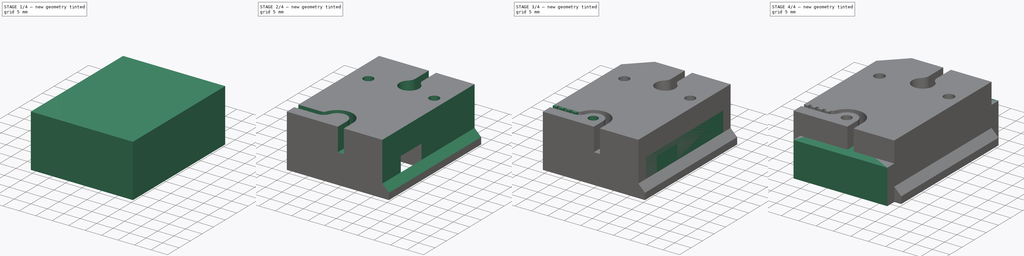
[diagram: build sequence overview — one tinted view per stage of 4, left to right]
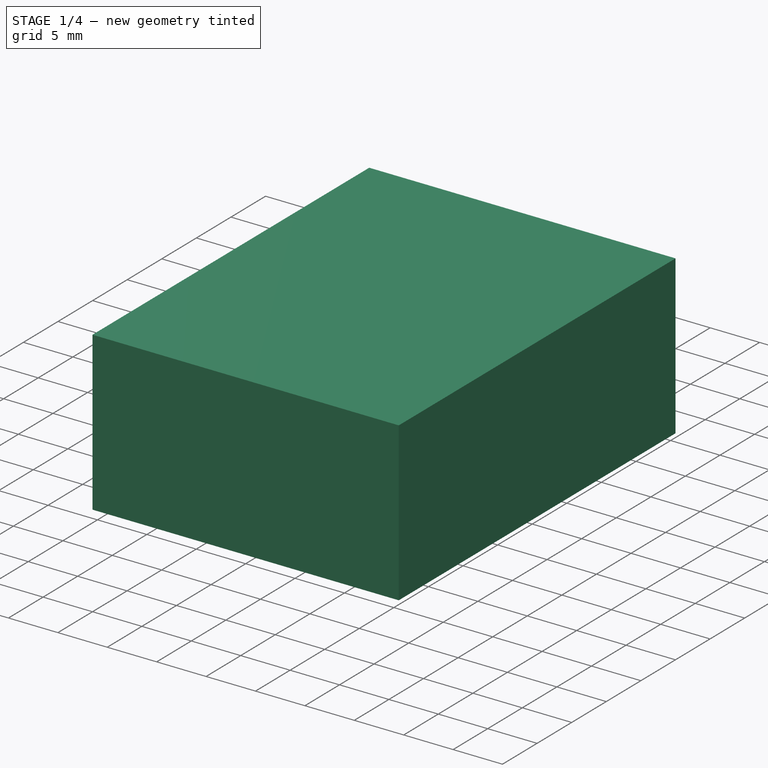
[diagram: stage 1 of 4 — iso view after this stage's code; geometry added in this stage tinted green]
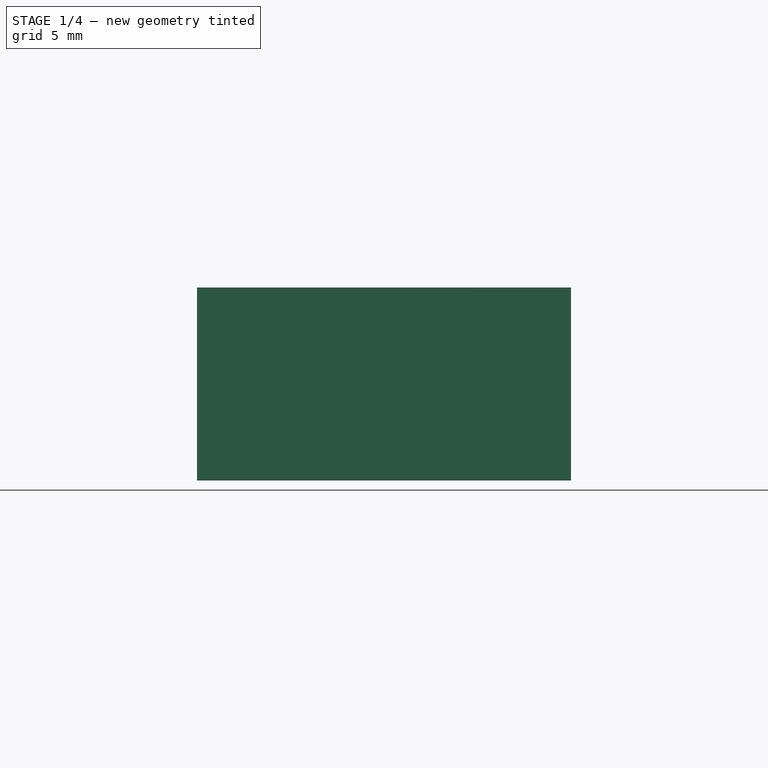
[diagram: stage 1 of 4 — front view after this stage's code; geometry added in this stage tinted green]
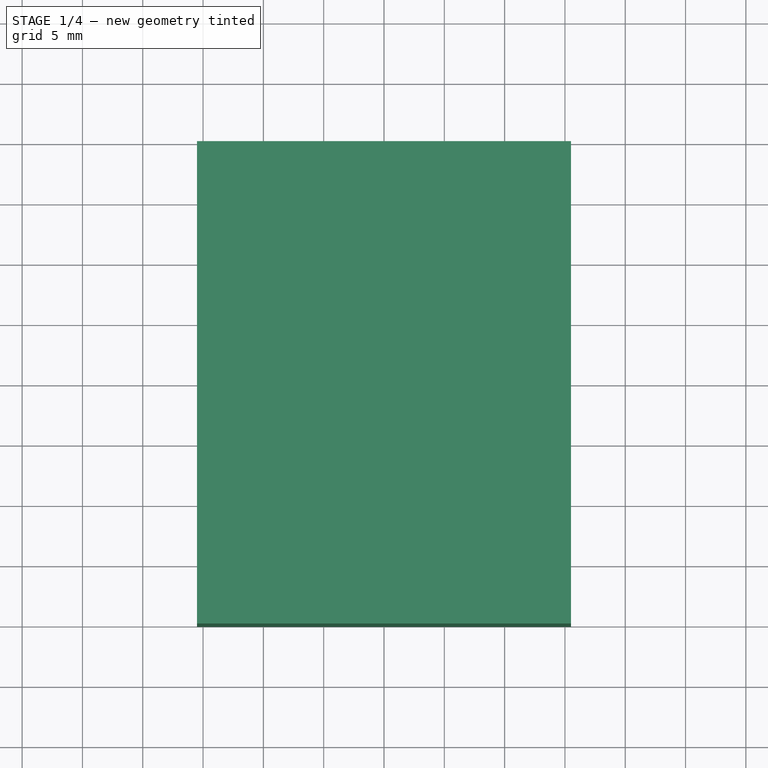
[diagram: stage 1 of 4 — top view after this stage's code; geometry added in this stage tinted green]
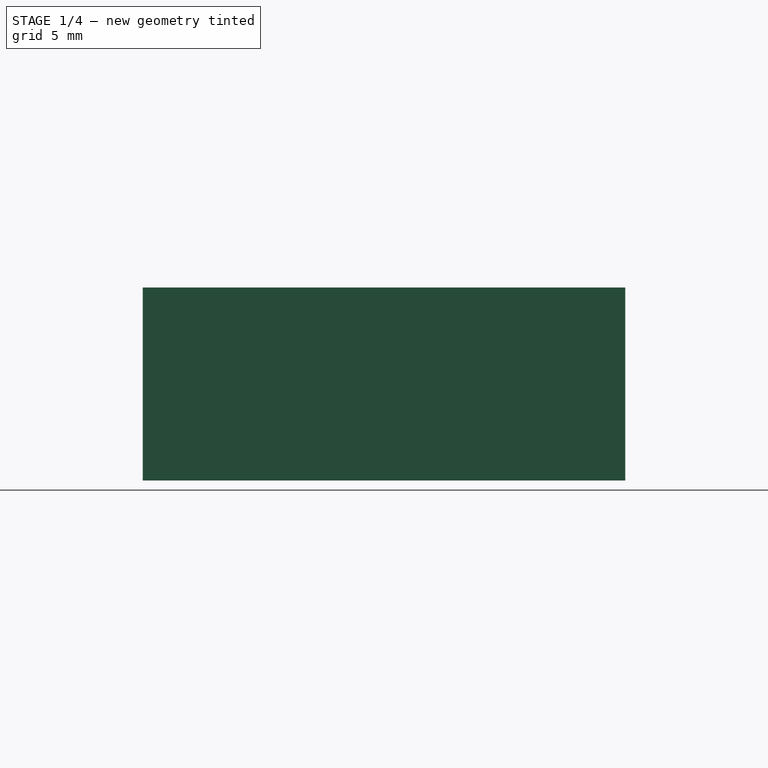
[diagram: stage 1 of 4 — right view after this stage's code; geometry added in this stage tinted green]
FCSTD DOCUMENT  (FreeCAD 0.19R)
Label: XjointBolted
License: All rights reserved
LicenseURL: http://en.wikipedia.org/wiki/All_rights_reserved
objects: Sketcher::SketchObject×14, PartDesign::Pocket×9, PartDesign::Pad×4, PartDesign::Body×4
note: 44 computed .brp shape members not serialized (recipe doc carries the construction recipe); baked Part::Feature solids carry a one-line shape summary decoded from their .brp

FEATURE [PartDesign::Body] Body002  label="CarriageC"
  Group = -> [Sketch004,Pad001,Sketch003,Pocket001]
  Origin = -> Origin002
  Tip = -> Pocket001
FEATURE [Sketcher::SketchObject] Sketch005
  FullyConstrained = false
  MapMode = 5
  Support = -> [XY_Plane003]
  sketch-geometry (11):
    g0: LineSegment StartX=-37.8782 StartY=-3 StartZ=0 EndX=35.272 EndY=-3 EndZ=0
    g1: LineSegment StartX=35.272 StartY=-3 StartZ=0 EndX=35.272 EndY=-12 EndZ=0
    g2: LineSegment StartX=35.272 StartY=-12 StartZ=0 EndX=-37.8782 EndY=-12 EndZ=0
    g3: LineSegment StartX=-37.8782 StartY=-12 StartZ=0 EndX=-37.8782 EndY=-3 EndZ=0
    g4: LineSegment StartX=-44.3491 StartY=-7.5 StartZ=0 EndX=45.9652 EndY=-7.5 EndZ=0
    g5: Circle CenterX=-11.1499 CenterY=11.8637 CenterZ=0 NormalX=0 NormalY=0 NormalZ=1 AngleXU=0 Radius=1.40675
    g6: Circle CenterX=9.8811 CenterY=13.2001 CenterZ=0 NormalX=0 NormalY=0 NormalZ=1 AngleXU=0 Radius=2.36339
    g7: LineSegment StartX=-15.5 StartY=20 StartZ=0 EndX=15.5 EndY=20 EndZ=0
    g8: LineSegment StartX=15.5 StartY=20 StartZ=0 EndX=15.5 EndY=-20 EndZ=0
    g9: LineSegment StartX=15.5 StartY=-20 StartZ=0 EndX=-15.5 EndY=-20 EndZ=0
    g10: LineSegment StartX=-15.5 StartY=-20 StartZ=0 EndX=-15.5 EndY=20 EndZ=0
  constraints (22):
    c: Coincident(g0,g1)
    c: Coincident(g1,g2)
    c: Coincident(g2,g3)
    c: Coincident(g3,g0)
    c: Horizontal(g0)
    c: Horizontal(g2)
    c: Vertical(g1)
    c: Vertical(g3)
    c: Symmetric(g1,g0,g4)
    c: Distance(g1) = 9
    c: DistanceY(g4) = -7.5
    c: Coincident(g7,g8)
    c: Coincident(g8,g9)
    c: Coincident(g9,g10)
    c: Coincident(g10,g7)
    c: Horizontal(g7)
    c: Horizontal(g9)
    c: Vertical(g8)
    c: Vertical(g10)
    c: Distance(g7,g0) = 23
    c: Distance(g7) = 31
    c: Symmetric(g8,g7,g-1)
FEATURE [PartDesign::Pad] Pad002
  Direction = (1,1,1)
  Length = 16
  Length2 = 100
  Profile = -> Sketch005
  Type = 0
FEATURE [Sketcher::SketchObject] Sketch006  label="BottomPocket"
  FullyConstrained = true
  MapMode = 5
  Placement = pos=(0,0,0) rot=(1,0,0;3.14159rad)
  Support = -> [Pad002]
  sketch-geometry (4):
    g0: LineSegment StartX=-13.5 StartY=18 StartZ=0 EndX=13.5 EndY=18 EndZ=0
    g1: LineSegment StartX=13.5 StartY=18 StartZ=0 EndX=13.5 EndY=-18 EndZ=0
    g2: LineSegment StartX=13.5 StartY=-18 StartZ=0 EndX=-13.5 EndY=-18 EndZ=0
    g3: LineSegment StartX=-13.5 StartY=-18 StartZ=0 EndX=-13.5 EndY=18 EndZ=0
  constraints (11):
    c: Coincident(g0,g1)
    c: Coincident(g1,g2)
    c: Coincident(g2,g3)
    c: Coincident(g3,g0)
    c: Horizontal(g0)
    c: Horizontal(g2)
    c: Vertical(g1)
    c: Vertical(g3)
    c: Distance(g0) = 27
    c: Distance(g1) = 36
    c: Symmetric(g0,g2,g-1)
FEATURE [PartDesign::Pocket] Pocket002
  BaseFeature = -> Pad002
  Length = 1.8
  Length2 = 100
  Profile = -> Sketch006
  Type = 0
FEATURE [Sketcher::SketchObject] Sketch007  label="RailHole"
  FullyConstrained = false
  MapMode = 5
  Placement = pos=(-15.5,0,0) rot=(0.57735,-0.57735,-0.57735;2.0944rad)
  Support = -> [Pocket002]
  sketch-geometry (5):
    g0: LineSegment StartX=3 StartY=8.5 StartZ=0 EndX=12 EndY=8.5 EndZ=0
    g1: LineSegment StartX=12 StartY=8.5 StartZ=0 EndX=12 EndY=-2.55241 EndZ=0
    g2: LineSegment StartX=12 StartY=-2.55241 StartZ=0 EndX=3 EndY=-2.55241 EndZ=0
    g3: LineSegment StartX=3 StartY=-2.55241 StartZ=0 EndX=3 EndY=8.5 EndZ=0
    g4: LineSegment StartX=7.5 StartY=10.9531 StartZ=0 EndX=7.5 EndY=-7.76606 EndZ=0
  constraints (12):
    c: Coincident(g0,g1)
    c: Coincident(g1,g2)
    c: Coincident(g2,g3)
    c: Coincident(g3,g0)
    c: Horizontal(g0)
    c: Horizontal(g2)
    c: Vertical(g1)
    c: Vertical(g3)
    c: Distance(g0) = 9
    c: Symmetric(g0,g0,g4)
    c: DistanceX(g4) = 7.5
    c: DistanceY(g0) = 8.5
FEATURE [PartDesign::Pocket] Pocket003
  BaseFeature = -> Pocket002
  Length = 29
  Length2 = 100
  Profile = -> Sketch007
  Type = 0
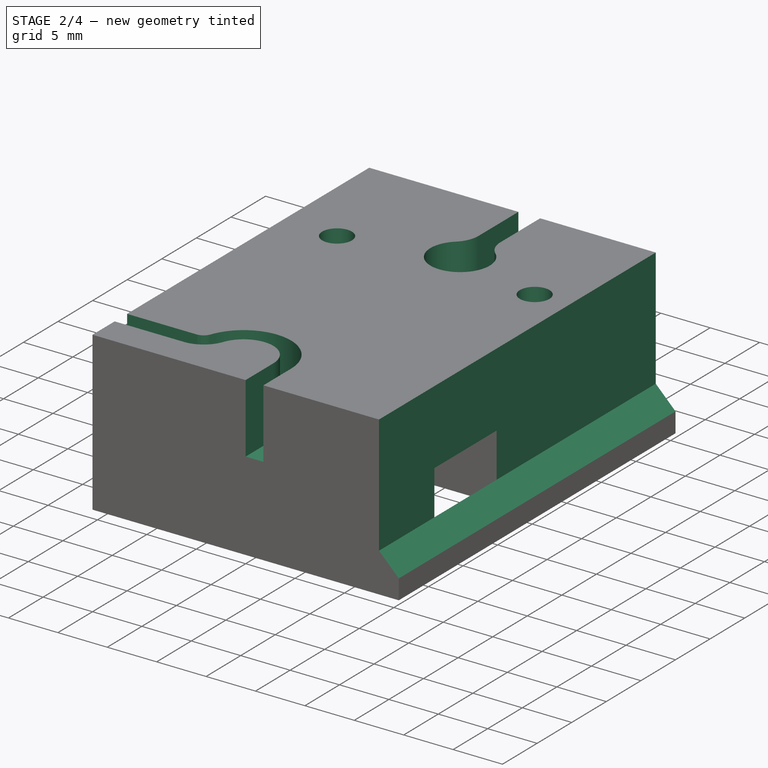
[diagram: stage 2 of 4 — iso view after this stage's code; geometry added in this stage tinted green]
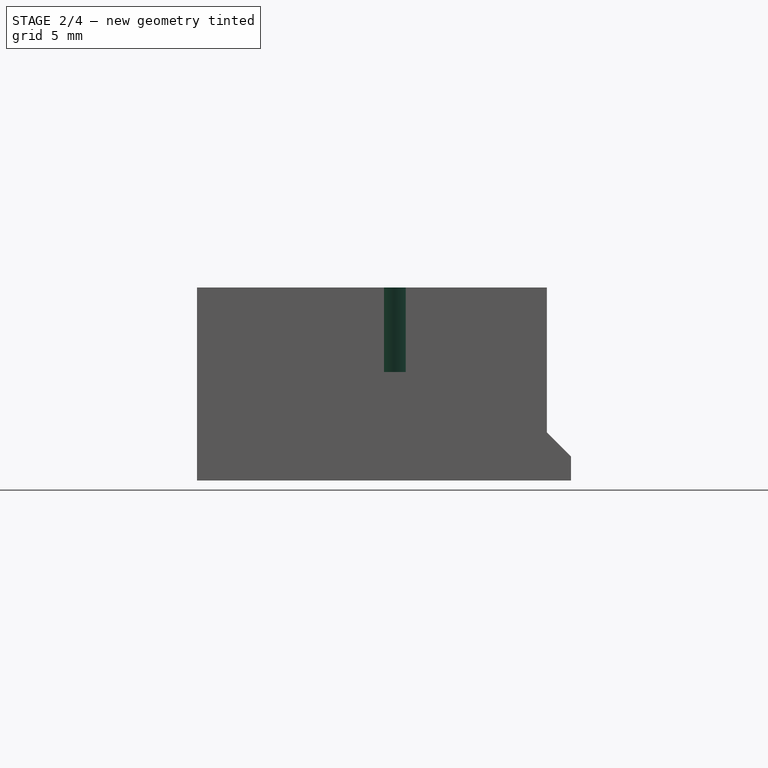
[diagram: stage 2 of 4 — front view after this stage's code; geometry added in this stage tinted green]
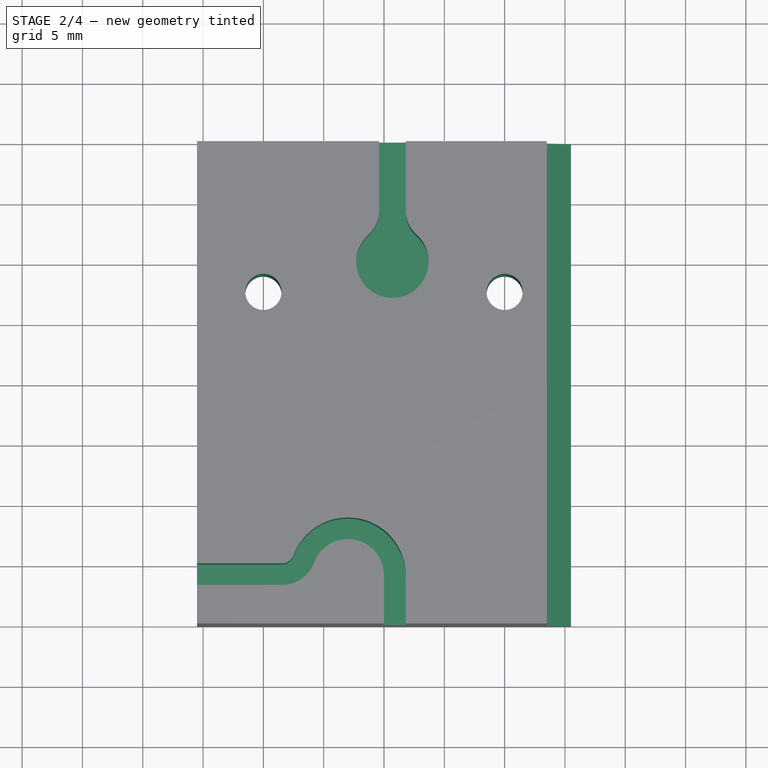
[diagram: stage 2 of 4 — top view after this stage's code; geometry added in this stage tinted green]
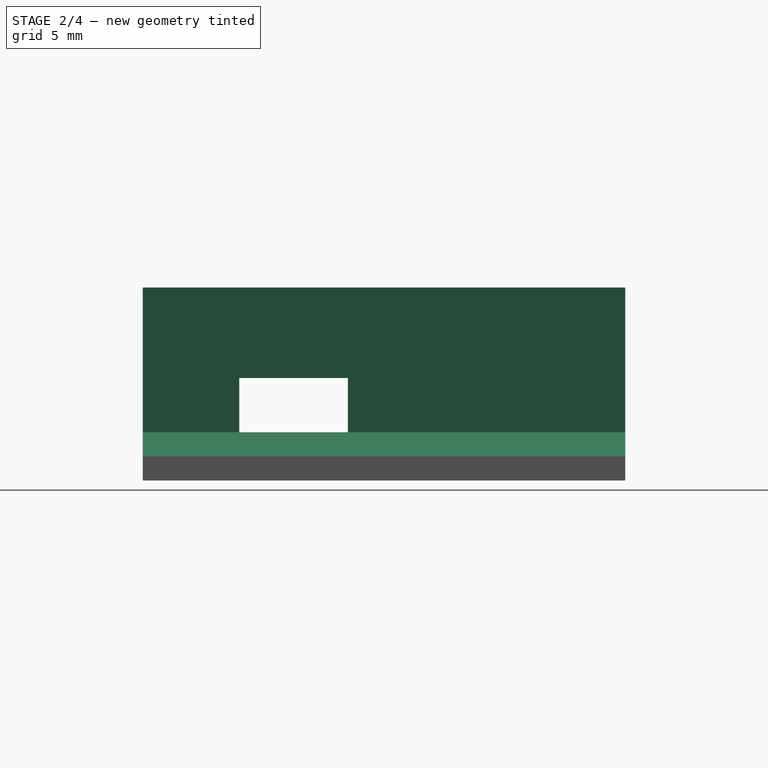
[diagram: stage 2 of 4 — right view after this stage's code; geometry added in this stage tinted green]
FEATURE [Sketcher::SketchObject] Sketch009  label="BeltNotch"
  FullyConstrained = true
  MapMode = 5
  Placement = pos=(0,-20,0) rot=(1,0,0;1.5708rad)
  Support = -> [Pocket003]
  sketch-geometry (4):
    g0: LineSegment StartX=13.5 StartY=18.73 StartZ=0 EndX=13.5 EndY=4 EndZ=0
    g1: LineSegment StartX=13.5 StartY=4 StartZ=0 EndX=19.97 EndY=-2.47 EndZ=0
    g2: LineSegment StartX=19.97 StartY=-2.47 StartZ=0 EndX=19.97 EndY=18.73 EndZ=0
    g3: LineSegment StartX=19.97 StartY=18.73 StartZ=0 EndX=13.5 EndY=18.73 EndZ=0
  constraints (12):
    c: Vertical(g0)
    c: Coincident(g0,g1)
    c: Coincident(g1,g2)
    c: Vertical(g2)
    c: Coincident(g2,g3)
    c: Coincident(g3,g0)
    c: Horizontal(g3)
    c: DistanceX(g0) = 13.5
    c: DistanceY(g0) = 4
    c: Angle(g1) = -0.785398
    c: Distance(g3) = 6.47
    c: DistanceY(g2) = 18.73
FEATURE [Sketcher::SketchObject] Sketch012  label="BeltClamp"
  FullyConstrained = false
  MapMode = 5
  Placement = pos=(0,0,16) rot=(0,0,1;0rad)
  sketch-geometry (17):
    g0: LineSegment StartX=1.8 StartY=29.2485 StartZ=0 EndX=-0.4 EndY=29.2485 EndZ=0
    g1: LineSegment StartX=-0.4 StartY=29.2485 StartZ=0 EndX=-0.4 EndY=14.2485 EndZ=0
    g2: LineSegment StartX=1.8 StartY=29.2485 StartZ=0 EndX=1.8 EndY=14.2485 EndZ=0
    g3: ArcOfCircle CenterX=0.7 CenterY=10 CenterZ=0 NormalX=0 NormalY=0 NormalZ=1 AngleXU=0 Radius=3 StartAngle=2.30052 EndAngle=7.12425
    g4: ArcOfCircle CenterX=-3.1 CenterY=14.2485 CenterZ=0 NormalX=0 NormalY=0 NormalZ=1 AngleXU=0 Radius=2.7 StartAngle=5.44212 EndAngle=6.28319
    g5: ArcOfCircle CenterX=4.5 CenterY=14.2485 CenterZ=0 NormalX=0 NormalY=0 NormalZ=1 AngleXU=0 Radius=2.7 StartAngle=3.14159 EndAngle=3.98266
    g6: LineSegment StartX=0.7 StartY=39.9499 StartZ=0 EndX=0.7 EndY=-32.17 EndZ=0
    g7: LineSegment StartX=0 StartY=-22.14 StartZ=0 EndX=0 EndY=-16 EndZ=0
    g8: LineSegment StartX=1.8 StartY=-22.14 StartZ=0 EndX=1.8 EndY=-16 EndZ=0
    g9: LineSegment StartX=0 StartY=-22.14 StartZ=0 EndX=1.8 EndY=-22.14 EndZ=0
    g10: ArcOfCircle CenterX=-3 CenterY=-16 CenterZ=0 NormalX=0 NormalY=0 NormalZ=1 AngleXU=0 Radius=3 StartAngle=0 EndAngle=2.78378
    g11: ArcOfCircle CenterX=-3 CenterY=-16 CenterZ=0 NormalX=0 NormalY=0 NormalZ=1 AngleXU=0 Radius=4.8 StartAngle=0 EndAngle=2.78378
    g12: ArcOfCircle CenterX=-8.47782 CenterY=-13.9518 CenterZ=0 NormalX=0 NormalY=0 NormalZ=1 AngleXU=0 Radius=1.04822 StartAngle=4.71239 EndAngle=5.92537
    g13: ArcOfCircle CenterX=-8.47782 CenterY=-13.9518 CenterZ=0 NormalX=0 NormalY=0 NormalZ=1 AngleXU=0 Radius=2.84822 StartAngle=4.71239 EndAngle=5.92537
    g14: LineSegment StartX=-17.9078 StartY=-15 StartZ=0 EndX=-8.47782 EndY=-15 EndZ=0
    g15: LineSegment StartX=-17.9078 StartY=-16.8 StartZ=0 EndX=-8.47782 EndY=-16.8 EndZ=0
    g16: LineSegment StartX=-17.9078 StartY=-16.8 StartZ=0 EndX=-17.9078 EndY=-15 EndZ=0
  constraints (45):
    c: Coincident(g0,g1)
    c: Coincident(g0,g2)
    c: Distance(g0) = 2.2
    c: Tangent(g5,g2) = -1.5708
    c: Tangent(g4,g1) = 1.5708
    c: Tangent(g4,g3) = 1.5708
    c: Tangent(g5,g3) = 1.5708
    c: Diameter(g3) = 6
    c: Vertical(g6)
    c: PointOnObject(g3,g6)
    c: DistanceX(g6) = 0.7
    c: DistanceY(g6) = -32.17
    c: Vertical(g1)
    c: Vertical(g2)
    c: Equal(g2,g1)
    c: Symmetric(g0,g0,g6)
    c: DistanceY(g3) = 10
    c: Distance(g2) = 15
    c: Distance(g3,g3) = 4
    c: Vertical(g7)
    c: Vertical(g8)
    c: Coincident(g9,g7)
    c: Coincident(g9,g8)
    c: Horizontal(g9)
    c: Coincident(g11,g10)
    c: Coincident(g13,g12)
    c: Tangent(g12,g11) = 1.5708
    c: Tangent(g13,g10) = 1.5708
    c: Horizontal(g14)
    c: Tangent(g15,g13) = -1.5708
    c: Tangent(g14,g12) = -1.5708
    c: Horizontal(g15)
    c: Distance(g9) = 1.8
    c: Diameter(g10) = 6
    c: Tangent(g11,g8) = -1.5708
    c: Tangent(g10,g7) = -1.5708
    c: DistanceX(g10) = -3
    c: DistanceY(g7) = -16
    c: DistanceX(g12) = -8.47782
    c: DistanceY(g12) = -15
    c: Coincident(g16,g15)
    c: Coincident(g16,g14)
    c: Vertical(g16)
    c: Distance(g15) = 9.43
    c: Distance(g8) = 6.14
FEATURE [PartDesign::Pocket] Pocket004
  BaseFeature = -> Pocket003
  Length = 5
  Length2 = 100
  Profile = -> Sketch009
  Type = 1
FEATURE [Sketcher::SketchObject] Sketch011  label="holesBolts"
  FullyConstrained = true
  MapMode = 5
  Placement = pos=(0,0,16) rot=(0,0,1;0rad)
  Support = -> [Pocket004]
  sketch-geometry (4):
    g0: Circle CenterX=-10 CenterY=-7.5 CenterZ=0 NormalX=0 NormalY=0 NormalZ=1 AngleXU=0 Radius=1.5
    g1: Circle CenterX=10 CenterY=-7.5 CenterZ=0 NormalX=0 NormalY=0 NormalZ=1 AngleXU=0 Radius=1.5
    g2: Circle CenterX=-10 CenterY=7.5 CenterZ=0 NormalX=0 NormalY=0 NormalZ=1 AngleXU=0 Radius=1.5
    g3: Circle CenterX=10 CenterY=7.5 CenterZ=0 NormalX=0 NormalY=0 NormalZ=1 AngleXU=0 Radius=1.5
  constraints (9):
    c: Symmetric(g3,g2,g-2)
    c: Symmetric(g0,g1,g-2)
    c: Distance(g1,g0) = 20
    c: Distance(g3,g1) = 15
    c: Symmetric(g1,g3,g-1)
    c: Diameter(g0) = 3
    c: Equal(g0,g1)
    c: Equal(g0,g2)
    c: Equal(g0,g3)
FEATURE [PartDesign::Pocket] Pocket005
  BaseFeature = -> Pocket004
  Length = 5
  Length2 = 100
  Profile = -> Sketch011
  Type = 1
FEATURE [PartDesign::Pocket] Pocket006
  BaseFeature = -> Pocket005
  Length = 7
  Length2 = 100
  Profile = -> Sketch012
  Type = 0
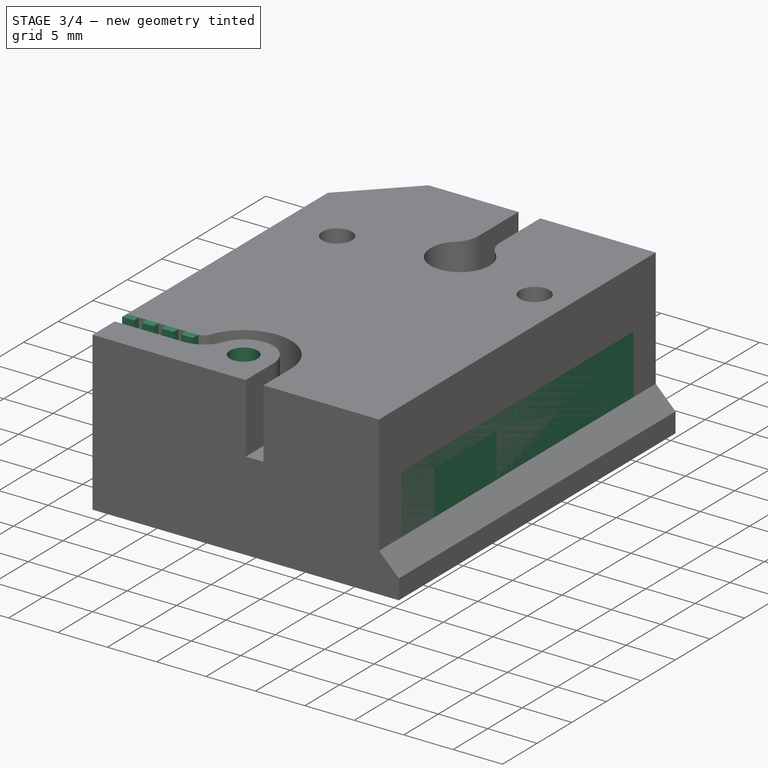
[diagram: stage 3 of 4 — iso view after this stage's code; geometry added in this stage tinted green]
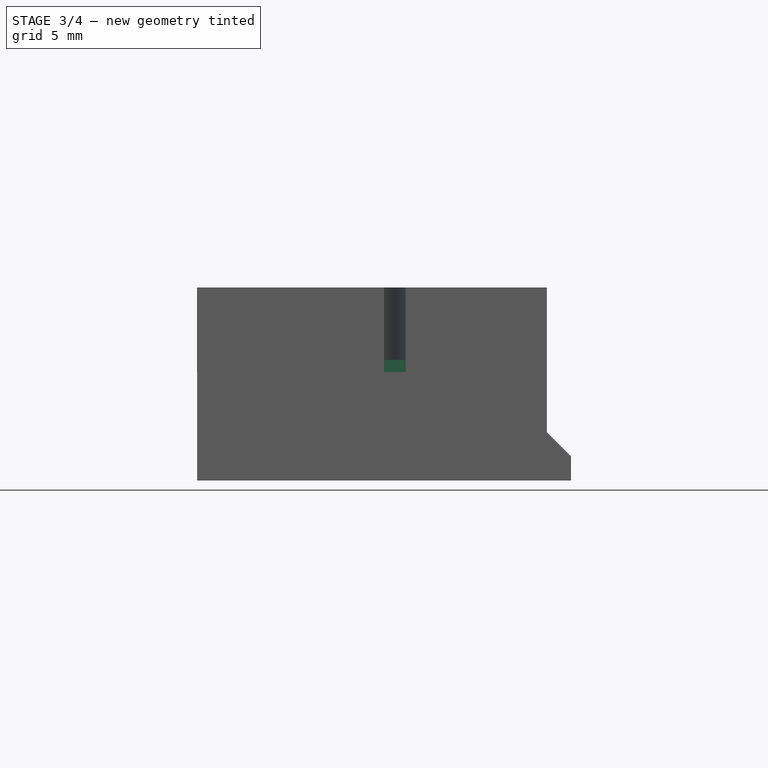
[diagram: stage 3 of 4 — front view after this stage's code; geometry added in this stage tinted green]
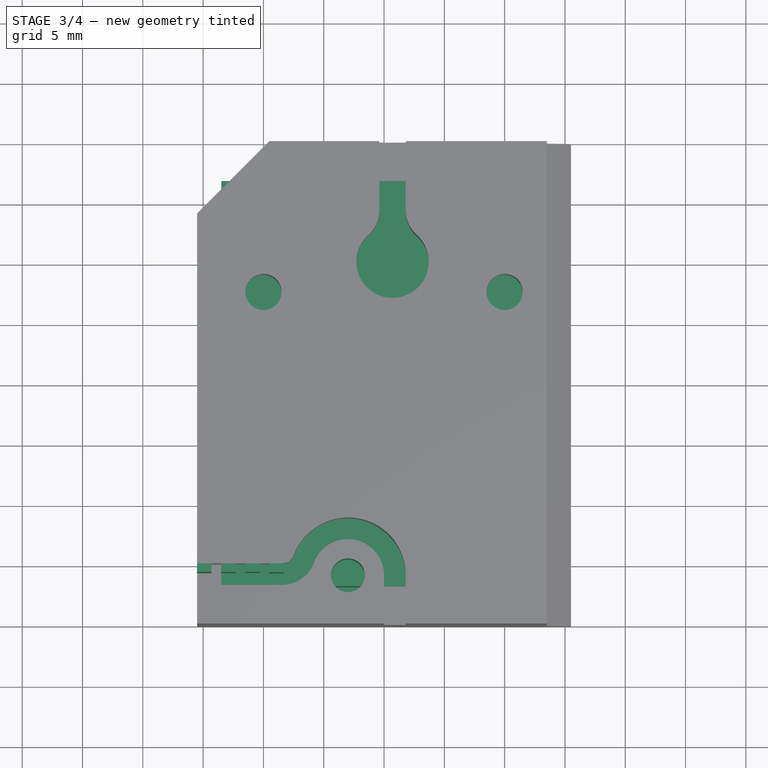
[diagram: stage 3 of 4 — top view after this stage's code; geometry added in this stage tinted green]
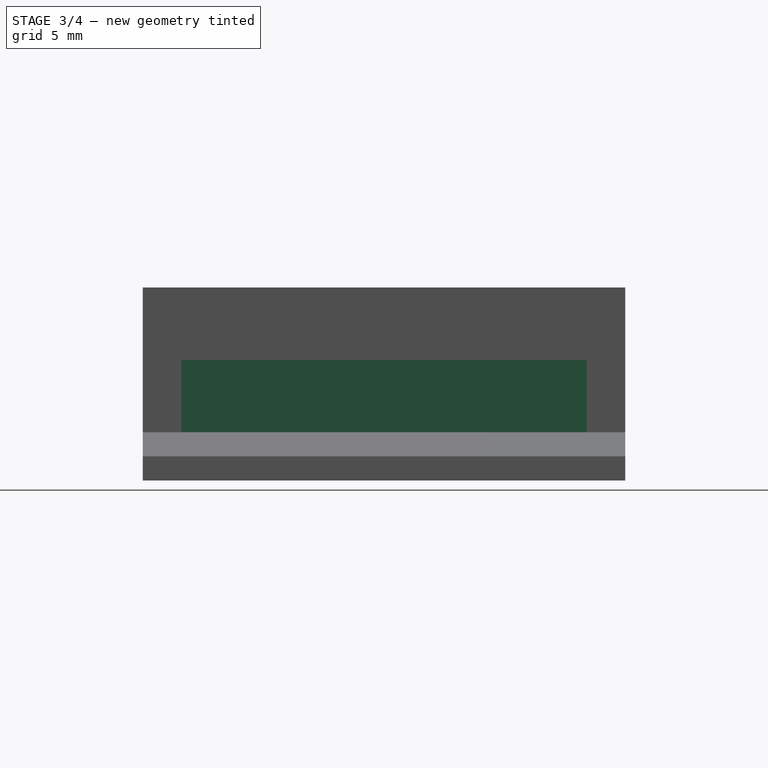
[diagram: stage 3 of 4 — right view after this stage's code; geometry added in this stage tinted green]
FEATURE [PartDesign::Body] Body  label="CarriageH"
  Group = -> [Sketch,Pad,Sketch002,Pocket]
  Origin = -> Origin
  Tip = -> Pocket
FEATURE [Sketcher::SketchObject] Sketch004
  FullyConstrained = true
  MapMode = 5
  Support = -> [XY_Plane002]
  sketch-geometry (4):
    g0: LineSegment StartX=-13.5 StartY=16.8 StartZ=0 EndX=13.5 EndY=16.8 EndZ=0
    g1: LineSegment StartX=13.5 StartY=16.8 StartZ=0 EndX=13.5 EndY=-16.8 EndZ=0
    g2: LineSegment StartX=13.5 StartY=-16.8 StartZ=0 EndX=-13.5 EndY=-16.8 EndZ=0
    g3: LineSegment StartX=-13.5 StartY=-16.8 StartZ=0 EndX=-13.5 EndY=16.8 EndZ=0
  constraints (11):
    c: Coincident(g0,g1)
    c: Coincident(g1,g2)
    c: Coincident(g2,g3)
    c: Coincident(g3,g0)
    c: Horizontal(g0)
    c: Horizontal(g2)
    c: Vertical(g1)
    c: Vertical(g3)
    c: Symmetric(g1,g0,g-1)
    c: Distance(g0) = 27
    c: Distance(g1) = 33.6
FEATURE [PartDesign::Pad] Pad001
  Direction = (1,1,1)
  Length = 10
  Length2 = 100
  Profile = -> Sketch004
  Type = 0
FEATURE [Sketcher::SketchObject] Sketch014  label="corner"
  FullyConstrained = false
  MapMode = 5
  Placement = pos=(0,0,16) rot=(0,0,1;0rad)
  sketch-geometry (3):
    g0: LineSegment StartX=-15.5 StartY=14 StartZ=0 EndX=-7.5016 EndY=21.9984 EndZ=0
    g1: LineSegment StartX=-7.5016 StartY=21.9984 StartZ=0 EndX=-21.3456 EndY=27.3506 EndZ=0
    g2: LineSegment StartX=-21.3456 StartY=27.3506 StartZ=0 EndX=-15.5 EndY=14 EndZ=0
  constraints (6):
    c: Coincident(g0,g1)
    c: Coincident(g1,g2)
    c: Coincident(g2,g0)
    c: Angle(g0) = 0.785398
    c: DistanceY(g0) = 14
    c: DistanceX(g0) = -15.5
FEATURE [Sketcher::SketchObject] Sketch015  label="clamphole1"
  FullyConstrained = false
  MapMode = 5
  Placement = pos=(0,0,9) rot=(0,0,1;0rad)
  sketch-geometry (2):
    g0: Circle CenterX=-3 CenterY=-16 CenterZ=0 NormalX=0 NormalY=0 NormalZ=1 AngleXU=0 Radius=1.4
    g1: Circle CenterX=0.701875 CenterY=10 CenterZ=0 NormalX=0 NormalY=0 NormalZ=1 AngleXU=0 Radius=1.4
  constraints (5):
    c: Diameter(g0) = 2.8
    c: Equal(g0,g1)
    c: DistanceY(g1) = 10
    c: DistanceX(g0) = -3
    c: DistanceY(g0) = -16
FEATURE [PartDesign::Pocket] Pocket007
  BaseFeature = -> Pocket006
  Length = 5
  Length2 = 100
  Profile = -> Sketch015
  Type = 4
FEATURE [Sketcher::SketchObject] Sketch016  label="teeth"
  FullyConstrained = false
  MapMode = 5
  Placement = pos=(0,0,16) rot=(0,0,1;0rad)
  Support = -> [Pocket007]
  sketch-geometry (29):
    g0: Circle CenterX=-20.9082 CenterY=-14.9653 CenterZ=0 NormalX=0 NormalY=0 NormalZ=1 AngleXU=0 Radius=0.5
    g1: Circle CenterX=-18.9082 CenterY=-14.9653 CenterZ=0 NormalX=0 NormalY=0 NormalZ=1 AngleXU=0 Radius=0.5
    g2: Circle CenterX=-16.9082 CenterY=-14.9653 CenterZ=0 NormalX=0 NormalY=0 NormalZ=1 AngleXU=0 Radius=0.5
    g3: Circle CenterX=-14.9082 CenterY=-14.9653 CenterZ=0 NormalX=0 NormalY=0 NormalZ=1 AngleXU=0 Radius=0.5
    g4: Circle CenterX=-12.9082 CenterY=-14.9653 CenterZ=0 NormalX=0 NormalY=0 NormalZ=1 AngleXU=0 Radius=0.5
    g5: Circle CenterX=-10.9082 CenterY=-14.9576 CenterZ=0 NormalX=0 NormalY=0 NormalZ=1 AngleXU=0 Radius=0.5
    g6: Circle CenterX=-8.90867 CenterY=-15.0023 CenterZ=0 NormalX=0 NormalY=0 NormalZ=1 AngleXU=0 Radius=0.5
    g7: LineSegment StartX=-20.9082 StartY=-14.9653 StartZ=0 EndX=-18.9082 EndY=-14.9653 EndZ=0
    g8: LineSegment StartX=-18.9082 StartY=-14.9653 StartZ=0 EndX=-16.9082 EndY=-14.9653 EndZ=0
    g9: LineSegment StartX=-16.9082 StartY=-14.9653 StartZ=0 EndX=-14.9082 EndY=-14.9653 EndZ=0
    g10: LineSegment StartX=-14.9082 StartY=-14.9653 StartZ=0 EndX=-12.9082 EndY=-14.9653 EndZ=0
    g11: LineSegment StartX=-12.9082 StartY=-14.9653 StartZ=0 EndX=-10.9082 EndY=-14.9576 EndZ=0
    g12: LineSegment StartX=-10.9082 StartY=-14.9576 StartZ=0 EndX=-8.90867 EndY=-15.0023 EndZ=0
    g13: LineSegment StartX=-15.5082 StartY=-14.2153 StartZ=0 EndX=-14.3082 EndY=-14.2153 EndZ=0
    g14: LineSegment StartX=-14.3082 StartY=-14.2153 StartZ=0 EndX=-14.3082 EndY=-15.7153 EndZ=0
    g15: LineSegment StartX=-14.3082 StartY=-15.7153 StartZ=0 EndX=-15.5082 EndY=-15.7153 EndZ=0
    g16: LineSegment StartX=-15.5082 StartY=-15.7153 StartZ=0 EndX=-15.5082 EndY=-14.2153 EndZ=0
    g17: LineSegment StartX=-13.5082 StartY=-14.2153 StartZ=0 EndX=-12.3082 EndY=-14.2153 EndZ=0
    g18: LineSegment StartX=-12.3082 StartY=-14.2153 StartZ=0 EndX=-12.3082 EndY=-15.7153 EndZ=0
    g19: LineSegment StartX=-12.3082 StartY=-15.7153 StartZ=0 EndX=-13.5082 EndY=-15.7153 EndZ=0
    g20: LineSegment StartX=-13.5082 StartY=-15.7153 StartZ=0 EndX=-13.5082 EndY=-14.2153 EndZ=0
    g21: LineSegment StartX=-11.5082 StartY=-14.2076 StartZ=0 EndX=-10.3082 EndY=-14.2076 EndZ=0
    g22: LineSegment StartX=-10.3082 StartY=-14.2076 StartZ=0 EndX=-10.3082 EndY=-15.7076 EndZ=0
    g23: LineSegment StartX=-10.3082 StartY=-15.7076 StartZ=0 EndX=-11.5082 EndY=-15.7076 EndZ=0
    g24: LineSegment StartX=-11.5082 StartY=-15.7076 StartZ=0 EndX=-11.5082 EndY=-14.2076 EndZ=0
    g25: LineSegment StartX=-9.50867 StartY=-14.2523 StartZ=0 EndX=-8.30867 EndY=-14.2523 EndZ=0
    g26: LineSegment StartX=-8.30867 StartY=-14.2523 StartZ=0 EndX=-8.30867 EndY=-15.7523 EndZ=0
    g27: LineSegment StartX=-8.30867 StartY=-15.7523 StartZ=0 EndX=-9.50867 EndY=-15.7523 EndZ=0
    g28: LineSegment StartX=-9.50867 StartY=-15.7523 StartZ=0 EndX=-9.50867 EndY=-14.2523 EndZ=0
  constraints (66):
    c: Coincident(g7,g0)
    c: Coincident(g7,g1)
    c: Horizontal(g7)
    c: Coincident(g7,g8)
    c: Coincident(g8,g2)
    c: Horizontal(g8)
    c: Coincident(g8,g9)
    c: Coincident(g9,g3)
    c: Horizontal(g9)
    c: Coincident(g9,g10)
    c: Coincident(g10,g4)
    c: Horizontal(g10)
    c: Coincident(g10,g11)
    c: Coincident(g11,g5)
    c: Coincident(g11,g12)
    c: Coincident(g12,g6)
    c: Equal(g7,g8)
    c: Equal(g8,g9)
    c: Equal(g9,g10)
    c: Equal(g10,g11)
    c: Equal(g11,g12)
    c: Distance(g12) = 2
    c: Coincident(g13,g14)
    c: Coincident(g14,g15)
    c: Coincident(g15,g16)
    c: Coincident(g16,g13)
    c: Horizontal(g13)
    c: Horizontal(g15)
    c: Vertical(g14)
    c: Vertical(g16)
    c: Coincident(g17,g18)
    c: Coincident(g18,g19)
    c: Coincident(g19,g20)
    c: Coincident(g20,g17)
    c: Horizontal(g17)
    c: Horizontal(g19)
    c: Vertical(g18)
    c: Vertical(g20)
    c: Coincident(g21,g22)
    c: Coincident(g22,g23)
    c: Coincident(g23,g24)
    c: Coincident(g24,g21)
    c: Horizontal(g21)
    c: Horizontal(g23)
    c: Vertical(g22)
    c: Vertical(g24)
    c: Coincident(g25,g26)
    c: Coincident(g26,g27)
    c: Coincident(g27,g28)
    c: Coincident(g28,g25)
    c: Horizontal(g25)
    c: Horizontal(g27)
    c: Vertical(g26)
    c: Vertical(g28)
    c: Equal(g13,g17)
    c: Equal(g17,g21)
    c: Equal(g21,g25)
    c: Equal(g28,g24)
    c: Equal(g24,g20)
    c: Equal(g20,g16)
    c: Symmetric(g15,g13,g3)
    c: Symmetric(g19,g17,g4)
    c: Symmetric(g23,g21,g5)
    c: Symmetric(g27,g25,g6)
    c: Distance(g17) = 1.2
    c: Distance(g18) = 1.5
FEATURE [PartDesign::Pocket] Pocket008
  BaseFeature = -> Pocket007
  Length = 5
  Length2 = 100
  Profile = -> Sketch014
  Type = 1
FEATURE [PartDesign::Pad] Pad003
  BaseFeature = -> Pocket008
  Direction = (1,1,1)
  Length = 7
  Length2 = 100
  Profile = -> Sketch016
  Reversed = true
  Type = 0
FEATURE [PartDesign::Body] Body003  label="Crail"
  Group = -> [Sketch005,Pad002,Sketch006,Pocket002,Sketch007,Pocket003,Sketch009,Sketch011,Sketch012,Pocket004,Pocket005,Pocket006,Sketch014,Sketch015,Pocket007,Sketch016,Pocket008,Pad003]
  Origin = -> Origin003
  Tip = -> Pad003
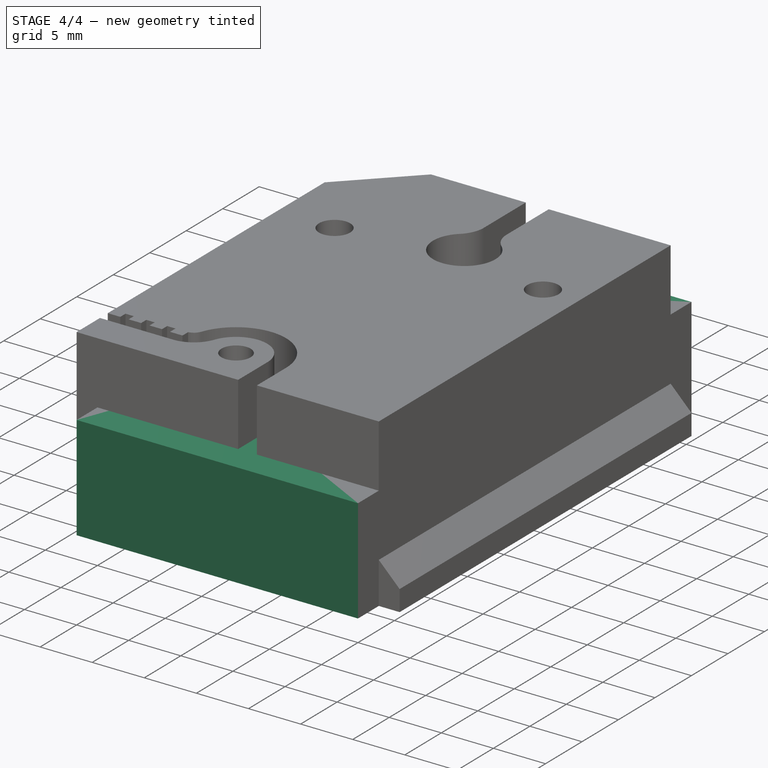
[diagram: stage 4 of 4 — iso view after this stage's code; geometry added in this stage tinted green]
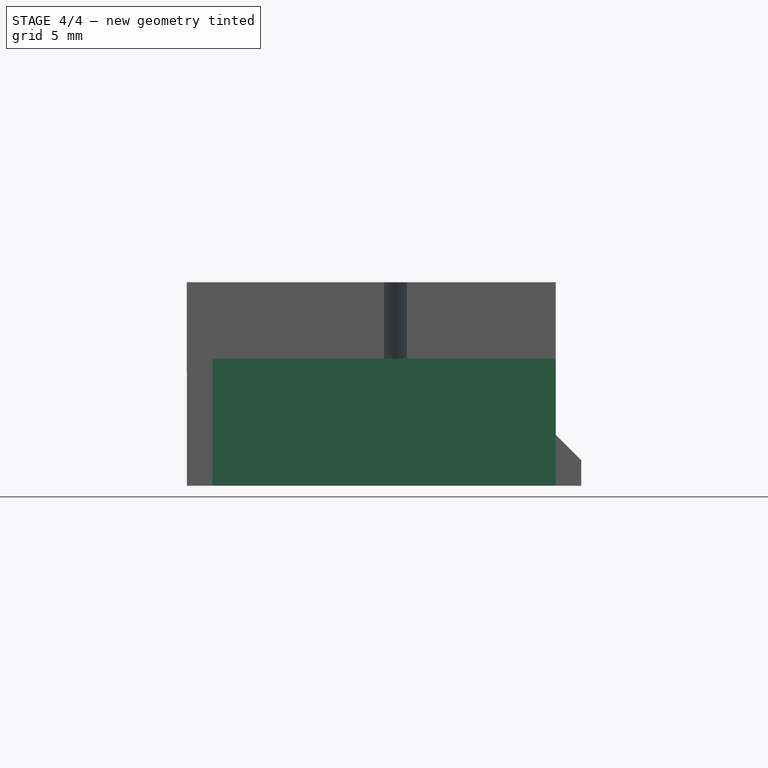
[diagram: stage 4 of 4 — front view after this stage's code; geometry added in this stage tinted green]
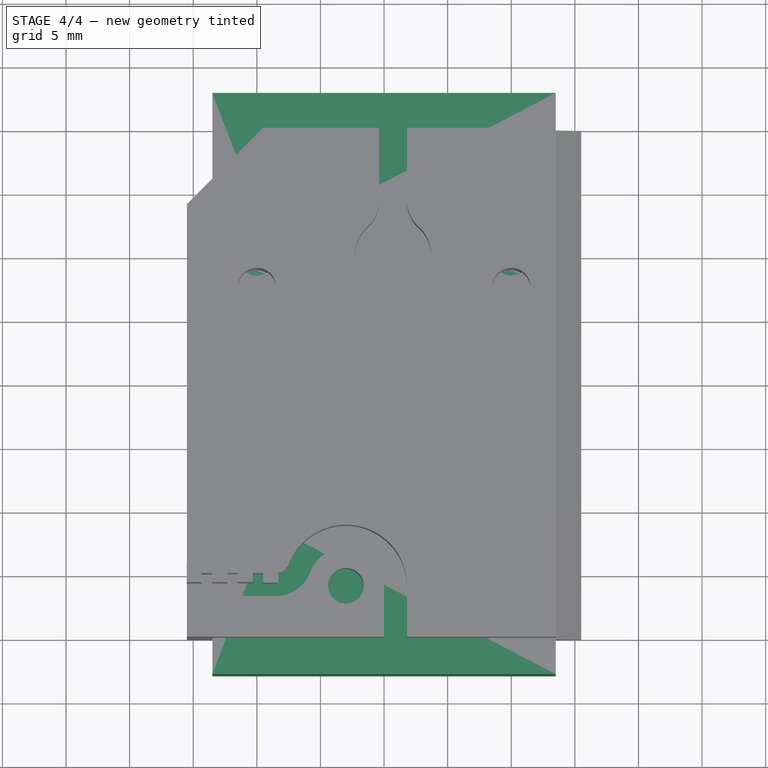
[diagram: stage 4 of 4 — top view after this stage's code; geometry added in this stage tinted green]
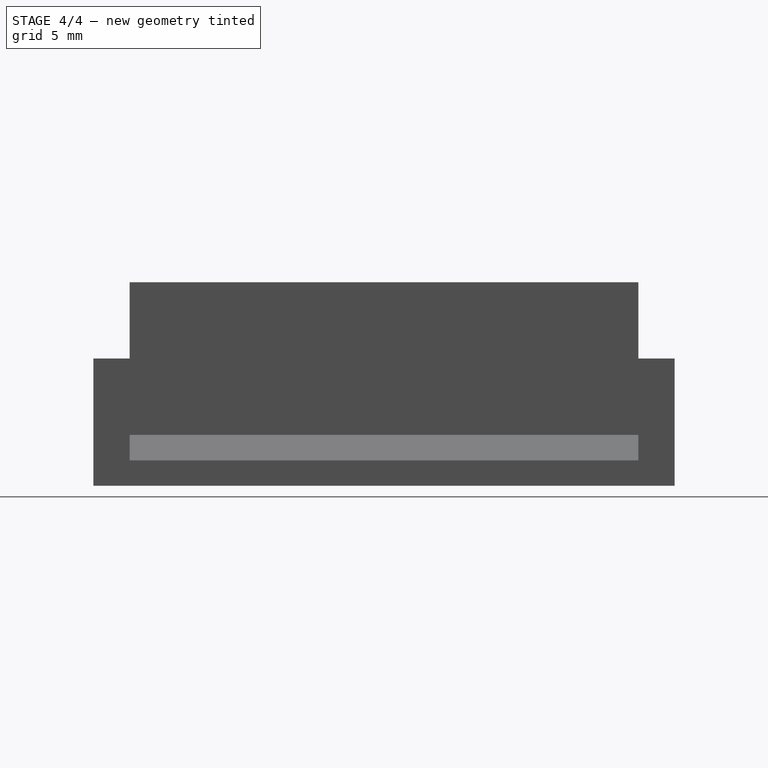
[diagram: stage 4 of 4 — right view after this stage's code; geometry added in this stage tinted green]
FEATURE [Sketcher::SketchObject] Sketch
  FullyConstrained = true
  MapMode = 5
  Support = -> [XY_Plane]
  sketch-geometry (4):
    g0: LineSegment StartX=-13.5 StartY=22.85 StartZ=0 EndX=13.5 EndY=22.85 EndZ=0
    g1: LineSegment StartX=13.5 StartY=22.85 StartZ=0 EndX=13.5 EndY=-22.85 EndZ=0
    g2: LineSegment StartX=13.5 StartY=-22.85 StartZ=0 EndX=-13.5 EndY=-22.85 EndZ=0
    g3: LineSegment StartX=-13.5 StartY=-22.85 StartZ=0 EndX=-13.5 EndY=22.85 EndZ=0
  constraints (11):
    c: Coincident(g0,g1)
    c: Coincident(g1,g2)
    c: Coincident(g2,g3)
    c: Coincident(g3,g0)
    c: Horizontal(g0)
    c: Horizontal(g2)
    c: Vertical(g1)
    c: Vertical(g3)
    c: Symmetric(g1,g0,g-1)
    c: Distance(g0) = 27
    c: Distance(g1) = 45.7
FEATURE [PartDesign::Pad] Pad
  Direction = (1,1,1)
  Length = 10
  Length2 = 100
  Profile = -> Sketch
  Type = 0
FEATURE [Sketcher::SketchObject] Sketch001
  FullyConstrained = false
  MapMode = 5
  Support = -> [XY_Plane001]
  sketch-geometry (13):
    g0: Circle CenterX=-10 CenterY=10 CenterZ=0 NormalX=0 NormalY=0 NormalZ=1 AngleXU=0 Radius=1.5
    g1: Circle CenterX=10 CenterY=10 CenterZ=0 NormalX=0 NormalY=0 NormalZ=1 AngleXU=0 Radius=1.5
    g2: Circle CenterX=-10 CenterY=-10 CenterZ=0 NormalX=0 NormalY=0 NormalZ=1 AngleXU=0 Radius=1.5
    g3: Circle CenterX=10 CenterY=-10 CenterZ=0 NormalX=0 NormalY=0 NormalZ=1 AngleXU=0 Radius=1.5
    g4: LineSegment StartX=-54.9096 StartY=-5.5 StartZ=0 EndX=34.3514 EndY=-5.5 EndZ=0
    g5: LineSegment StartX=34.3514 StartY=-5.5 StartZ=0 EndX=34.3514 EndY=-14.5 EndZ=0
    g6: LineSegment StartX=34.3514 StartY=-14.5 StartZ=0 EndX=-54.9096 EndY=-14.5 EndZ=0
    g7: LineSegment StartX=-54.9096 StartY=-14.5 StartZ=0 EndX=-54.9096 EndY=-5.5 EndZ=0
    g8: LineSegment StartX=-66.6812 StartY=-10 StartZ=0 EndX=73.6884 EndY=-10 EndZ=0
    g9: LineSegment StartX=-15.378 StartY=17.5 StartZ=0 EndX=16.1512 EndY=17.5 EndZ=0
    g10: LineSegment StartX=16.1512 StartY=17.5 StartZ=0 EndX=16.1512 EndY=-27.5773 EndZ=0
    g11: LineSegment StartX=16.1512 StartY=-27.5773 StartZ=0 EndX=-15.378 EndY=-27.5773 EndZ=0
    g12: LineSegment StartX=-15.378 StartY=-27.5773 StartZ=0 EndX=-15.378 EndY=17.5 EndZ=0
  constraints (29):
    c: Coincident(g4,g5)
    c: Coincident(g5,g6)
    c: Coincident(g6,g7)
    c: Coincident(g7,g4)
    c: Horizontal(g4)
    c: Horizontal(g6)
    c: Vertical(g5)
    c: Vertical(g7)
    c: Distance(g5) = 9
    c: Symmetric(g5,g4,g8)
    c: DistanceY(g8) = -10
    c: PointOnObject(g2,g8)
    c: Distance(g3,g2) = 20
    c: Symmetric(g2,g3,g-2)
    c: Symmetric(g1,g2,g-1)
    c: Symmetric(g0,g3,g-1)
    c: Diameter(g0) = 3
    c: Equal(g0,g1)
    c: Diameter(g2) = 3
    c: Diameter(g3) = 3
    c: Coincident(g9,g10)
    c: Coincident(g10,g11)
    c: Coincident(g11,g12)
    c: Coincident(g12,g9)
    c: Horizontal(g9)
    c: Horizontal(g11)
    c: Vertical(g10)
    c: Vertical(g12)
    c: Distance(g9,g4) = 23
FEATURE [PartDesign::Body] Body001  label="Hrail"
  Group = -> [Sketch001]
  Origin = -> Origin001
FEATURE [Sketcher::SketchObject] Sketch002
  FullyConstrained = true
  MapMode = 5
  Placement = pos=(0,0,10) rot=(0,0,1;0rad)
  Support = -> [Pad]
  sketch-geometry (4):
    g0: Circle CenterX=-10 CenterY=10 CenterZ=0 NormalX=0 NormalY=0 NormalZ=1 AngleXU=0 Radius=1.5
    g1: Circle CenterX=10 CenterY=10 CenterZ=0 NormalX=0 NormalY=0 NormalZ=1 AngleXU=0 Radius=1.5
    g2: Circle CenterX=-10 CenterY=-10 CenterZ=0 NormalX=0 NormalY=0 NormalZ=1 AngleXU=0 Radius=1.5
    g3: Circle CenterX=10 CenterY=-10 CenterZ=0 NormalX=0 NormalY=0 NormalZ=1 AngleXU=0 Radius=1.5
  constraints (9):
    c: Symmetric(g3,g0,g-1)
    c: Symmetric(g1,g2,g-1)
    c: Symmetric(g1,g0,g-2)
    c: Distance(g1,g0) = 20
    c: Distance(g3,g1) = 20
    c: Diameter(g0) = 3
    c: Equal(g0,g1)
    c: Equal(g0,g2)
    c: Equal(g0,g3)
FEATURE [PartDesign::Pocket] Pocket
  BaseFeature = -> Pad
  Length = 5
  Length2 = 100
  Profile = -> Sketch002
  Type = 0
FEATURE [Sketcher::SketchObject] Sketch003
  FullyConstrained = true
  MapMode = 5
  Placement = pos=(0,0,10) rot=(0,0,1;0rad)
  Support = -> [Pad001]
  sketch-geometry (4):
    g0: Circle CenterX=-10 CenterY=7.5 CenterZ=0 NormalX=0 NormalY=0 NormalZ=1 AngleXU=0 Radius=1.5
    g1: Circle CenterX=10 CenterY=7.5 CenterZ=0 NormalX=0 NormalY=0 NormalZ=1 AngleXU=0 Radius=1.5
    g2: Circle CenterX=-10 CenterY=-7.5 CenterZ=0 NormalX=0 NormalY=0 NormalZ=1 AngleXU=0 Radius=1.5
    g3: Circle CenterX=10 CenterY=-7.5 CenterZ=0 NormalX=0 NormalY=0 NormalZ=1 AngleXU=0 Radius=1.5
  constraints (9):
    c: Symmetric(g3,g0,g-1)
    c: Symmetric(g1,g2,g-1)
    c: Symmetric(g1,g0,g-2)
    c: Distance(g1,g0) = 20
    c: Distance(g3,g1) = 15
    c: Diameter(g0) = 3
    c: Equal(g0,g1)
    c: Equal(g0,g2)
    c: Equal(g0,g3)
FEATURE [PartDesign::Pocket] Pocket001
  BaseFeature = -> Pad001
  Length = 5
  Length2 = 100
  Profile = -> Sketch003
  Type = 0
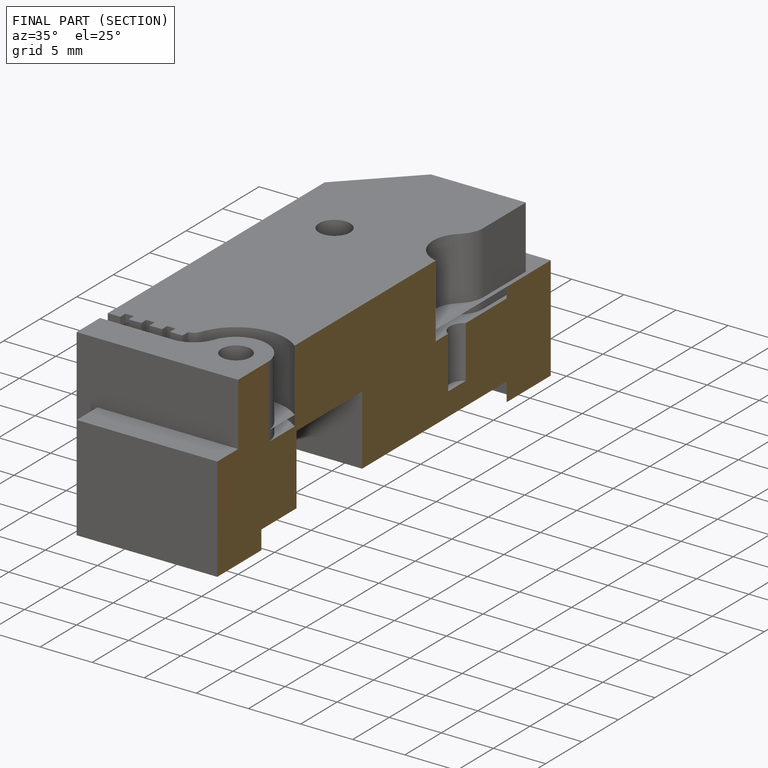
[diagram: finished part — half-section view (interior)]
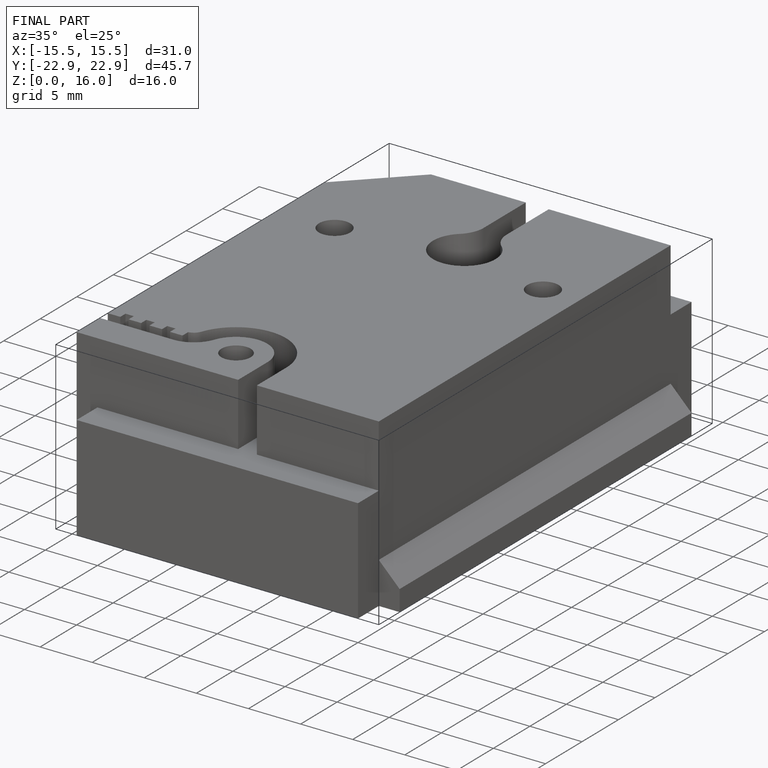
[diagram: finished part — iso view with bounding-box wireframe]
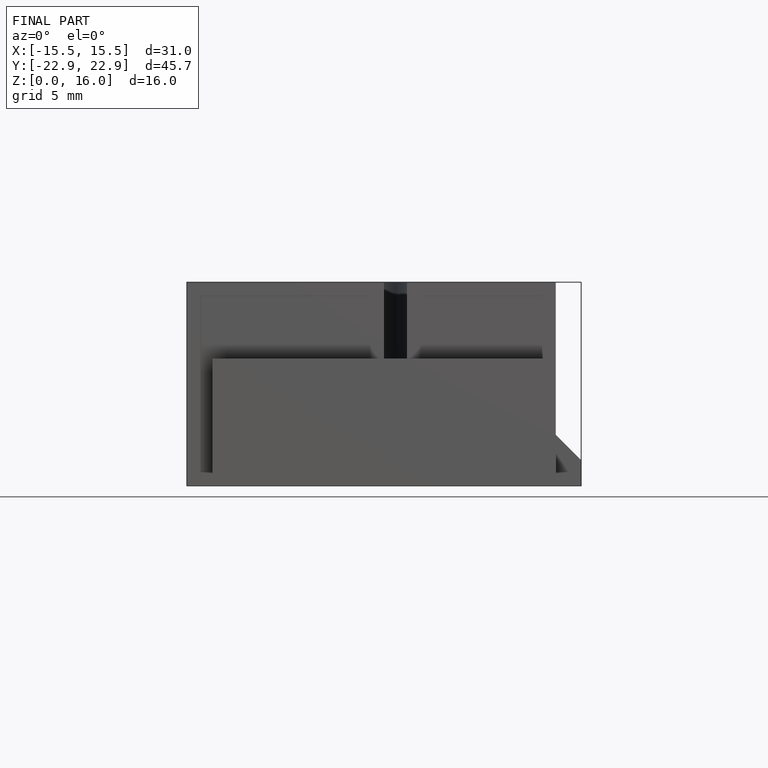
[diagram: finished part — front view with bounding-box wireframe]
